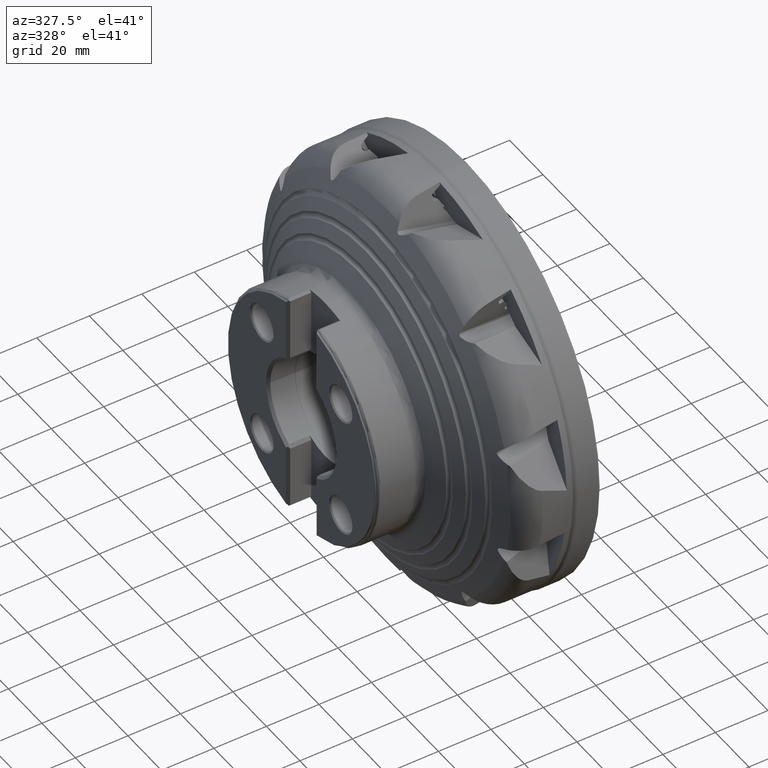
[diagram: clean part render]
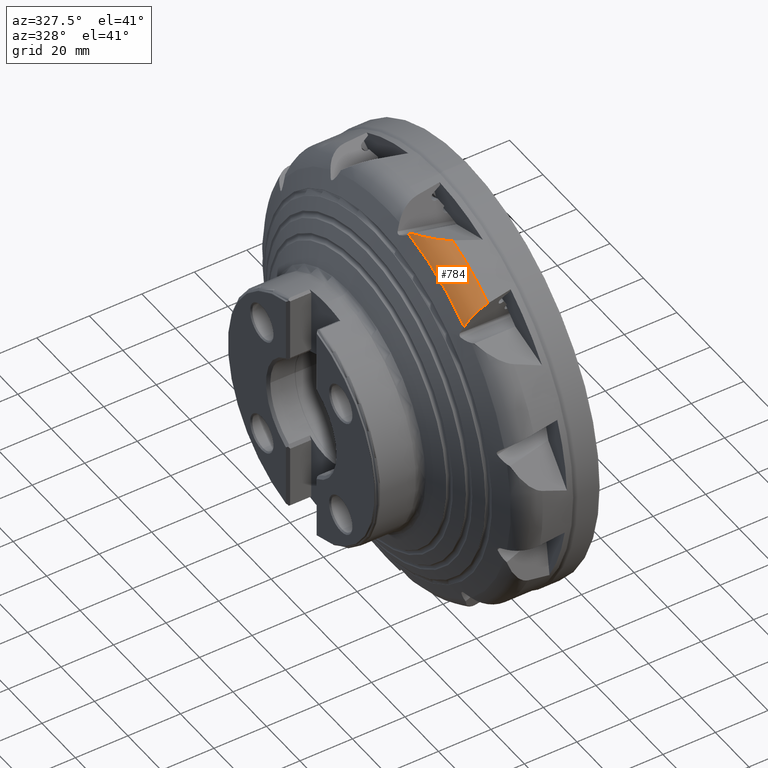
[diagram: same view with one face highlighted and labeled with its STEP entity id]
A machine part, auxiliary view. The second image highlights one B-rep face of the part: STEP entity #784.
In plain terms, the highlighted toroidal blend (fillet) surface has major radius 69.575 mm and minor (blend) radius 10 mm.
Its self-contained STEP definition (entity closure, byte-faithful):
#119 = VERTEX_POINT ( 'NONE', #2421 ) ;
#157 = VERTEX_POINT ( 'NONE', #2445 ) ;
#784 = ADVANCED_FACE ( 'NONE', ( #7342 ), #7349, .T. ) ;
#1861 = VERTEX_POINT ( 'NONE', #12956 ) ;
#2044 = VERTEX_POINT ( 'NONE', #13139 ) ;
#2421 = CARTESIAN_POINT ( 'NONE',  ( -28.82220633424789800, -46.43329944037708400, 57.98246817162575400 ) ) ;
#2445 = CARTESIAN_POINT ( 'NONE',  ( -28.82220633424788400, -13.39264809046355300, 73.06609945329175600 ) ) ;
#4255 = EDGE_CURVE ( 'NONE', #157, #119, #12399, .T. ) ;
#4593 = EDGE_CURVE ( 'NONE', #14949, #1861, #12864, .T. ) ;
#4594 = EDGE_CURVE ( 'NONE', #157, #14949, #12865, .T. ) ;
#5284 = ORIENTED_EDGE ( 'NONE', *, *, #4594, .F. ) ;
#5285 = ORIENTED_EDGE ( 'NONE', *, *, #4255, .T. ) ;
#5286 = ORIENTED_EDGE ( 'NONE', *, *, #15859, .F. ) ;
#5287 = ORIENTED_EDGE ( 'NONE', *, *, #15673, .F. ) ;
#5288 = ORIENTED_EDGE ( 'NONE', *, *, #4593, .F. ) ;
#7342 = FACE_OUTER_BOUND ( 'NONE', #16174, .T. ) ;
#7349 = TOROIDAL_SURFACE ( 'NONE', #8830, 69.57500000000000300, 10.00000000000000900 ) ;
#8523 = DIRECTION ( 'NONE',  ( 1.000000000000000000, -0.0000000000000000000, -0.0000000000000000000 ) ) ;
#8531 = CARTESIAN_POINT ( 'NONE',  ( -20.00000000000000000, 0.0000000000000000000, 0.0000000000000000000 ) ) ;
#8533 = DIRECTION ( 'NONE',  ( 0.0000000000000000000, 0.0000000000000000000, -1.000000000000000000 ) ) ;
#8830 = AXIS2_PLACEMENT_3D ( 'NONE', #8531, #8523, #8533 ) ;
#9135 = AXIS2_PLACEMENT_3D ( 'NONE', #13366, #13371, #13372 ) ;
#12399 = CIRCLE ( 'NONE', #9135, 74.28336228384736700 ) ;
#12864 = B_SPLINE_CURVE_WITH_KNOTS ( 'NONE', 3,
 ( #16960, #16976, #16977, #16978, #16979, #16980, #16981, #16982, #16983, #16984, #16985, #16986, #16987, #16988, #16989, #16990, #16991, #16992 ),
 .UNSPECIFIED., .F., .F.,
 ( 4, 2, 2, 2, 2, 2, 2, 2, 4 ),
 ( 0.002018050335745219800, 0.005694219472394720900, 0.007532304040719471300, 0.009370388609044219900, 0.01120847317736896900, 0.01212751546153134300, 0.01304655774569371700, 0.01488464231401845000, 0.01672272688234318100 ),
 .UNSPECIFIED. ) ;
#12865 = B_SPLINE_CURVE_WITH_KNOTS ( 'NONE', 3,
 ( #16924, #16993, #16994, #16995 ),
 .UNSPECIFIED., .F., .F.,
 ( 4, 4 ),
 ( 2.507860637005088100E-017, 0.001125484152390444200 ),
 .UNSPECIFIED. ) ;
#12956 = CARTESIAN_POINT ( 'NONE',  ( -20.00000000000000400, -25.60119872739804900, 75.34427150567103100 ) ) ;
#13139 = CARTESIAN_POINT ( 'NONE',  ( -19.99999999999998200, -46.97549449922924900, 64.22992714889908000 ) ) ;
#13366 = CARTESIAN_POINT ( 'NONE',  ( -28.82220633424789800, 0.0000000000000000000, 0.0000000000000000000 ) ) ;
#13371 = DIRECTION ( 'NONE',  ( 1.000000000000000000, -0.0000000000000000000, -0.0000000000000000000 ) ) ;
#13372 = DIRECTION ( 'NONE',  ( 0.0000000000000000000, 0.0000000000000000000, -1.000000000000000000 ) ) ;
#14420 = B_SPLINE_CURVE_WITH_KNOTS ( 'NONE', 3,
 ( #20266, #20273, #20274, #20275, #20276, #20277, #20278, #20279, #20280, #20281, #20282, #20283, #20284, #20285, #20286, #20287 ),
 .UNSPECIFIED., .F., .F.,
 ( 4, 2, 2, 2, 2, 2, 2, 4 ),
 ( 1.991925409344643500E-007, 0.002822397382186398300, 0.004233496477009118600, 0.005644595571831838500, 0.007055694666654569600, 0.008466793761477301600, 0.009877892856300033600, 0.01128899195112276600 ),
 .UNSPECIFIED. ) ;
#14949 = VERTEX_POINT ( 'NONE', #18721 ) ;
#15673 = EDGE_CURVE ( 'NONE', #1861, #2044, #18135, .T. ) ;
#15859 = EDGE_CURVE ( 'NONE', #2044, #119, #14420, .T. ) ;
#16174 = EDGE_LOOP ( 'NONE', ( #5284, #5285, #5286, #5287, #5288 ) ) ;
#16924 = CARTESIAN_POINT ( 'NONE',  ( -28.82220633424788400, -13.39264809046355300, 73.06609945329175600 ) ) ;
#16960 = CARTESIAN_POINT ( 'NONE',  ( -28.31052783251977400, -14.06620400424109700, 73.80854279737030800 ) ) ;
#16976 = CARTESIAN_POINT ( 'NONE',  ( -27.97606461454160300, -15.21302000546657300, 74.09872846865771100 ) ) ;
#16977 = CARTESIAN_POINT ( 'NONE',  ( -27.57968058392497900, -16.34180038480466700, 74.36556638277501500 ) ) ;
#16978 = CARTESIAN_POINT ( 'NONE',  ( -26.86344877790886800, -17.99953638511135500, 74.71995193825078700 ) ) ;
#16979 = CARTESIAN_POINT ( 'NONE',  ( -26.60429132333046100, -18.54616922367305800, 74.83038336961018900 ) ) ;
#16980 = CARTESIAN_POINT ( 'NONE',  ( -26.03721306268895200, -19.62523164131287600, 75.03285960526849900 ) ) ;
#16981 = CARTESIAN_POINT ( 'NONE',  ( -25.72807023974901200, -20.15926982143889400, 75.12510093540690500 ) ) ;
#16982 = CARTESIAN_POINT ( 'NONE',  ( -25.06248259360101100, -21.19033473311201000, 75.28397437434509200 ) ) ;
#16983 = CARTESIAN_POINT ( 'NONE',  ( -24.70520663558400200, -21.68946849772360300, 75.35107906767105100 ) ) ;
#16984 = CARTESIAN_POINT ( 'NONE',  ( -24.12483218131163200, -22.40838847821907400, 75.42934066452146200 ) ) ;
#16985 = CARTESIAN_POINT ( 'NONE',  ( -23.92392842032416300, -22.64304123296182800, 75.45167739595720500 ) ) ;
#16986 = CARTESIAN_POINT ( 'NONE',  ( -23.50529659508474400, -23.10107744118126400, 75.48787619972807800 ) ) ;
#16987 = CARTESIAN_POINT ( 'NONE',  ( -23.28764252540253600, -23.32424213057961300, 75.50168576693246800 ) ) ;
#16988 = CARTESIAN_POINT ( 'NONE',  ( -22.61587890206128300, -23.96527094155128200, 75.52833355239060600 ) ) ;
#16989 = CARTESIAN_POINT ( 'NONE',  ( -22.14053505242546600, -24.35818130363859500, 75.52688549018759500 ) ) ;
#16990 = CARTESIAN_POINT ( 'NONE',  ( -21.12048208631191700, -25.05713052504183800, 75.47552889701063400 ) ) ;
#16991 = CARTESIAN_POINT ( 'NONE',  ( -20.57295815238240200, -25.36364103651470000, 75.42499113480795400 ) ) ;
#16992 = CARTESIAN_POINT ( 'NONE',  ( -20.00000000000000400, -25.60119872739804900, 75.34427150567103100 ) ) ;
#16993 = CARTESIAN_POINT ( 'NONE',  ( -28.67103406910266400, -13.63653402944572500, 73.30937158879791600 ) ) ;
#16994 = CARTESIAN_POINT ( 'NONE',  ( -28.50128156721112300, -13.86093957303901000, 73.55751147326520800 ) ) ;
#16995 = CARTESIAN_POINT ( 'NONE',  ( -28.31052783251977400, -14.06620400424109700, 73.80854279737030800 ) ) ;
#18135 = CIRCLE ( 'NONE', #19480, 79.57500000000000300 ) ;
#18721 = CARTESIAN_POINT ( 'NONE',  ( -28.31052783251977400, -14.06620400424109700, 73.80854279737030800 ) ) ;
#19480 = AXIS2_PLACEMENT_3D ( 'NONE', #19537, #19545, #19546 ) ;
#19537 = CARTESIAN_POINT ( 'NONE',  ( -20.00000000000000000, 0.0000000000000000000, 0.0000000000000000000 ) ) ;
#19545 = DIRECTION ( 'NONE',  ( 1.000000000000000000, -0.0000000000000000000, -0.0000000000000000000 ) ) ;
#19546 = DIRECTION ( 'NONE',  ( 0.0000000000000000000, 0.0000000000000000000, -1.000000000000000000 ) ) ;
#20266 = CARTESIAN_POINT ( 'NONE',  ( -19.99999999999998200, -46.97549449922924900, 64.22992714889908000 ) ) ;
#20273 = CARTESIAN_POINT ( 'NONE',  ( -20.94454390258667300, -47.08938740640329000, 64.14662990924858800 ) ) ;
#20274 = CARTESIAN_POINT ( 'NONE',  ( -21.85800192112045100, -47.16014894287648900, 63.93194774393472100 ) ) ;
#20275 = CARTESIAN_POINT ( 'NONE',  ( -23.18482293091944900, -47.20612130694487300, 63.42663741164711400 ) ) ;
#20276 = CARTESIAN_POINT ( 'NONE',  ( -23.62051843688415100, -47.21106943933190800, 63.22614474420475300 ) ) ;
#20277 = CARTESIAN_POINT ( 'NONE',  ( -24.45115936546351800, -47.20060494349657200, 62.77614499590340800 ) ) ;
#20278 = CARTESIAN_POINT ( 'NONE',  ( -24.84962601026390800, -47.18537512587562300, 62.52550396722815400 ) ) ;
#20279 = CARTESIAN_POINT ( 'NONE',  ( -25.61393447058362200, -47.13556266648594600, 61.97458697166899800 ) ) ;
#20280 = CARTESIAN_POINT ( 'NONE',  ( -25.98193481022258700, -47.10067649204823700, 61.67220049880972300 ) ) ;
#20281 = CARTESIAN_POINT ( 'NONE',  ( -26.67361471287395600, -47.01264839153690600, 61.02736336382078300 ) ) ;
#20282 = CARTESIAN_POINT ( 'NONE',  ( -26.99594152305273600, -46.95985770076276800, 60.68678371305096400 ) ) ;
#20283 = CARTESIAN_POINT ( 'NONE',  ( -27.59590655551107100, -46.83759561845992900, 59.97110783368683000 ) ) ;
#20284 = CARTESIAN_POINT ( 'NONE',  ( -27.87353464621235900, -46.76812044516431400, 59.59600377966270200 ) ) ;
#20285 = CARTESIAN_POINT ( 'NONE',  ( -28.38408228079671900, -46.61248194784587900, 58.81126367791723200 ) ) ;
#20286 = CARTESIAN_POINT ( 'NONE',  ( -28.61629477230728800, -46.52638704594522800, 58.40221336397788600 ) ) ;
#20287 = CARTESIAN_POINT ( 'NONE',  ( -28.82220633424789800, -46.43329944037708400, 57.98246817162575400 ) ) ;